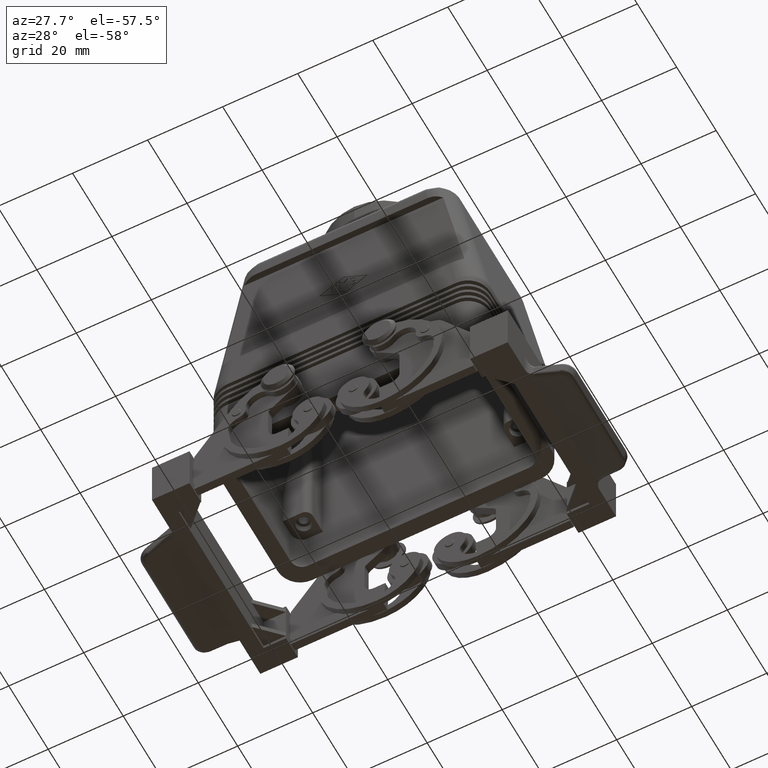
[diagram: clean part render]
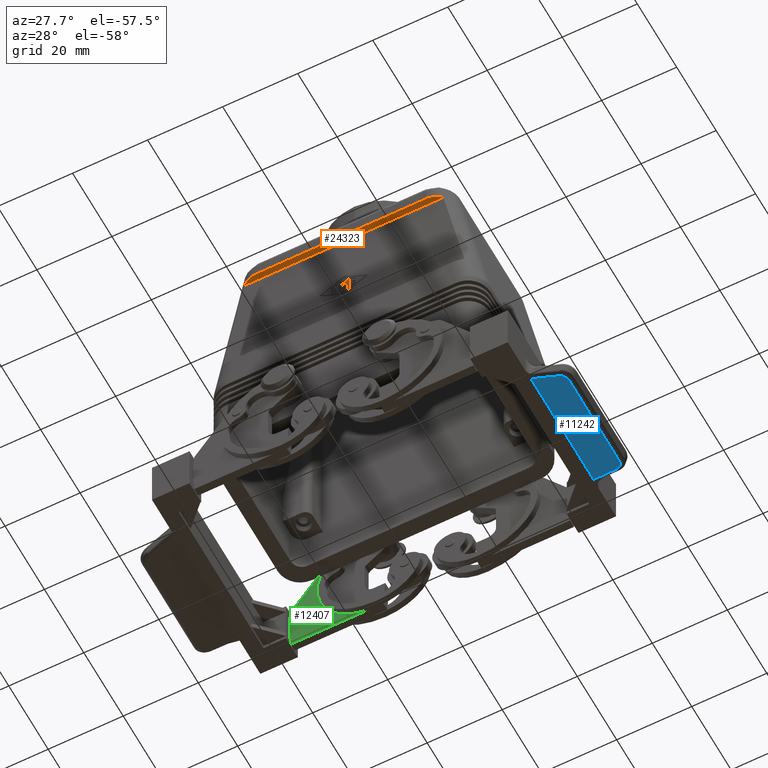
[diagram: same view with three faces highlighted in distinct colors, each labeled with its STEP entity id]
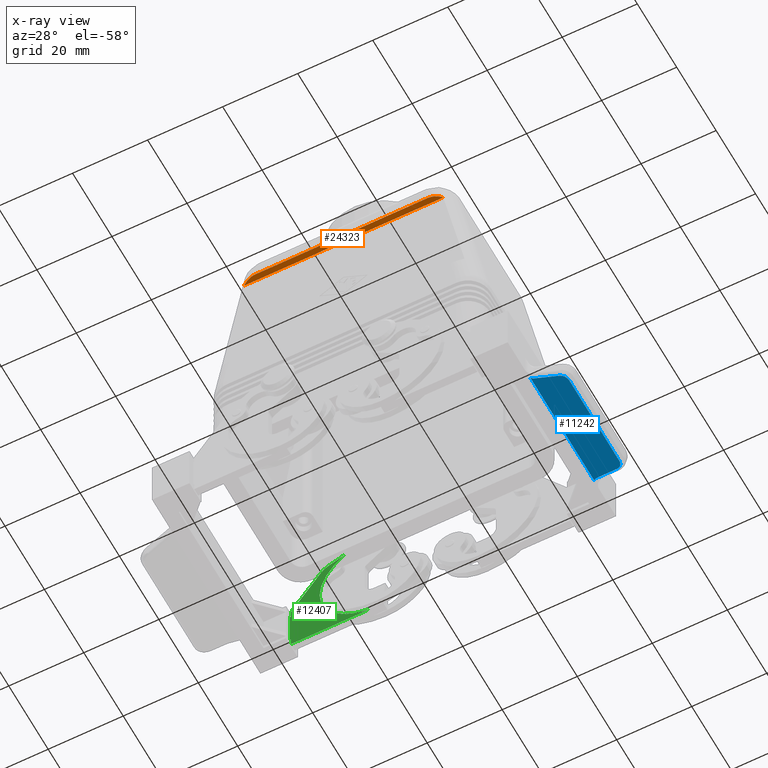
[diagram: x-ray of the same camera — body ghosted, the three highlighted faces saturated]
A machine part, auxiliary view with three faces highlighted in distinct colors.
The next image is the same camera in x-ray (body ghosted, the three faces saturated) — at least one of them is partly hidden behind the body in this view.
Their STEP definitions:

[orange] entity #24323 — the highlighted planar face has unit normal (0, 0.7071, 0.7071).
#1781=CARTESIAN_POINT('',(22.997355071071752,-21.500000000000000,69.0));
#1782=VERTEX_POINT('',#1781);
#1789=CARTESIAN_POINT('',(26.551731548058775,-20.500000000000004,68.0));
#1790=VERTEX_POINT('',#1789);
#1791=CARTESIAN_POINT('',(24.094129264620143,-15.499999999999998,62.999999999999957));
#1792=DIRECTION('',(-1.387779E-017,0.707106781186551,0.707106781186544));
#1793=DIRECTION('',(-0.250284329480718,-0.684601254167847,0.684601254167853));
#1794=AXIS2_PLACEMENT_3D('',#1791,#1792,#1793);
#1795=ELLIPSE('',#1794,8.625881245604305,6.000000000000001);
#1796=EDGE_CURVE('',#1782,#1790,#1795,.T.);
#2032=CARTESIAN_POINT('',(-26.551731548058775,-20.500000000000004,68.0));
#2033=VERTEX_POINT('',#2032);
#2040=CARTESIAN_POINT('',(-22.997355071071752,-21.500000000000000,69.0));
#2041=VERTEX_POINT('',#2040);
#2042=CARTESIAN_POINT('',(-24.094129264620143,-15.499999999999998,62.999999999999957));
#2043=DIRECTION('',(1.387779E-017,0.707106781186551,0.707106781186544));
#2044=DIRECTION('',(0.250284329480718,-0.684601254167847,0.684601254167853));
#2045=AXIS2_PLACEMENT_3D('',#2042,#2043,#2044);
#2046=ELLIPSE('',#2045,8.625881245604305,6.000000000000001);
#2047=EDGE_CURVE('',#2033,#2041,#2046,.T.);
#24273=CARTESIAN_POINT('',(-26.551731548058775,-20.500000000000004,68.0));
#24274=DIRECTION('',(1.0,0.0,0.0));
#24275=VECTOR('',#24274,53.103463096117551);
#24276=LINE('',#24273,#24275);
#24277=EDGE_CURVE('',#2033,#1790,#24276,.T.);
#24307=CARTESIAN_POINT('',(0.0,-21.500000000000000,69.0));
#24308=DIRECTION('',(0.0,0.707106781186551,0.707106781186544));
#24309=DIRECTION('',(1.0,0.0,0.0));
#24310=AXIS2_PLACEMENT_3D('',#24307,#24308,#24309);
#24311=PLANE('',#24310);
#24312=ORIENTED_EDGE('',*,*,#1796,.F.);
#24313=CARTESIAN_POINT('',(-22.997355071071752,-21.500000000000000,69.0));
#24314=DIRECTION('',(1.0,0.0,0.0));
#24315=VECTOR('',#24314,45.994710142143504);
#24316=LINE('',#24313,#24315);
#24317=EDGE_CURVE('',#2041,#1782,#24316,.T.);
#24318=ORIENTED_EDGE('',*,*,#24317,.F.);
#24319=ORIENTED_EDGE('',*,*,#2047,.F.);
#24320=ORIENTED_EDGE('',*,*,#24277,.T.);
#24321=EDGE_LOOP('',(#24312,#24318,#24319,#24320));
#24322=FACE_OUTER_BOUND('',#24321,.T.);
#24323=ADVANCED_FACE('',(#24322),#24311,.F.);

[blue] entity #11242 — the highlighted planar face has unit normal (-0.2843, 0, -0.9587).
#7396=CARTESIAN_POINT('',(56.043983636699089,-12.706588053087298,-23.035676786148805));
#7397=VERTEX_POINT('',#7396);
#7405=CARTESIAN_POINT('',(56.043983636699089,12.706588053087295,-23.035676786148805));
#7406=VERTEX_POINT('',#7405);
#7407=CARTESIAN_POINT('',(56.043983636699089,-12.706588053087298,-23.035676786148805));
#7408=DIRECTION('',(0.0,1.0,0.0));
#7409=VECTOR('',#7408,25.413176106174593);
#7410=LINE('',#7407,#7409);
#7411=EDGE_CURVE('',#7397,#7406,#7410,.T.);
#9941=CARTESIAN_POINT('',(54.448294052914505,-14.680744051950416,-22.562454599318134));
#9942=VERTEX_POINT('',#9941);
#9950=CARTESIAN_POINT('',(54.126526664493113,-12.706588053087298,-22.467030358446408));
#9951=DIRECTION('',(0.284323213851200,6.310887E-030,0.958728486102987));
#9952=DIRECTION('',(-1.734629E-013,-1.0,5.144265E-014));
#9953=AXIS2_PLACEMENT_3D('',#9950,#9951,#9952);
#9954=ELLIPSE('',#9953,2.002553303570501,2.000000000000000);
#9955=EDGE_CURVE('',#9942,#7397,#9954,.T.);
#10021=CARTESIAN_POINT('',(54.448294052914520,14.680744051950414,-22.562454599318137));
#10022=VERTEX_POINT('',#10021);
#10041=CARTESIAN_POINT('',(54.126526664493113,12.706588053087295,-22.467030358446408));
#10042=DIRECTION('',(0.284323213851200,0.0,0.958728486102987));
#10043=DIRECTION('',(-1.178810E-013,1.0,3.495911E-014));
#10044=AXIS2_PLACEMENT_3D('',#10041,#10042,#10043);
#10045=ELLIPSE('',#10044,2.002553303570501,2.000000000000000);
#10046=EDGE_CURVE('',#7406,#10022,#10045,.T.);
#10057=CARTESIAN_POINT('',(48.590576781996333,-15.722116011224760,-20.825273505357991));
#10058=VERTEX_POINT('',#10057);
#10066=CARTESIAN_POINT('',(48.590576781996333,-15.722116011224760,-20.825273505357991));
#10067=DIRECTION('',(0.945099192195921,0.168017634168164,-0.280281272152012));
#10068=VECTOR('',#10067,6.197992040716774);
#10069=LINE('',#10066,#10068);
#10070=EDGE_CURVE('',#10058,#9942,#10069,.T.);
#10083=CARTESIAN_POINT('',(48.590576781996333,15.722116011224756,-20.825273505357991));
#10084=VERTEX_POINT('',#10083);
#10085=CARTESIAN_POINT('',(54.448294052914520,14.680744051950414,-22.562454599318137));
#10086=DIRECTION('',(-0.945099192195921,0.168017634168163,0.280281272152012));
#10087=VECTOR('',#10086,6.197992040716788);
#10088=LINE('',#10085,#10087);
#10089=EDGE_CURVE('',#10022,#10084,#10088,.T.);
#10152=CARTESIAN_POINT('',(47.493765265492904,-16.152035910738395,-20.500000000000014));
#10153=VERTEX_POINT('',#10152);
#10169=CARTESIAN_POINT('',(49.115676786148811,-18.675803534582482,-20.980998638112496));
#10170=DIRECTION('',(-0.284323213851200,-3.081488E-033,-0.958728486102987));
#10171=DIRECTION('',(-0.958728486102987,-8.870020E-017,0.284323213851200));
#10172=AXIS2_PLACEMENT_3D('',#10169,#10170,#10171);
#10173=ELLIPSE('',#10172,3.129144532039846,3.0);
#10174=EDGE_CURVE('',#10153,#10058,#10173,.T.);
#10232=CARTESIAN_POINT('',(47.493765265492904,16.152035910738388,-20.500000000000014));
#10233=VERTEX_POINT('',#10232);
#10251=CARTESIAN_POINT('',(49.115676786148811,18.675803534582474,-20.980998638112496));
#10252=DIRECTION('',(-0.284323213851200,-1.232595E-032,-0.958728486102987));
#10253=DIRECTION('',(-0.958728486102987,-2.661006E-016,0.284323213851200));
#10254=AXIS2_PLACEMENT_3D('',#10251,#10252,#10253);
#10255=ELLIPSE('',#10254,3.129144532039846,3.0);
#10256=EDGE_CURVE('',#10084,#10233,#10255,.T.);
#11222=CARTESIAN_POINT('',(57.002712122802066,0.0,-23.320000000000004));
#11223=DIRECTION('',(-0.284323213851200,0.0,-0.958728486102987));
#11224=DIRECTION('',(-0.958728486102987,0.0,0.284323213851200));
#11225=AXIS2_PLACEMENT_3D('',#11222,#11223,#11224);
#11226=PLANE('',#11225);
#11227=ORIENTED_EDGE('',*,*,#10174,.F.);
#11228=CARTESIAN_POINT('',(47.493765265492904,16.152035910738388,-20.500000000000014));
#11229=DIRECTION('',(0.0,-1.0,0.0));
#11230=VECTOR('',#11229,32.304071821476782);
#11231=LINE('',#11228,#11230);
#11232=EDGE_CURVE('',#10233,#10153,#11231,.T.);
#11233=ORIENTED_EDGE('',*,*,#11232,.F.);
#11234=ORIENTED_EDGE('',*,*,#10256,.F.);
#11235=ORIENTED_EDGE('',*,*,#10089,.F.);
#11236=ORIENTED_EDGE('',*,*,#10046,.F.);
#11237=ORIENTED_EDGE('',*,*,#7411,.F.);
#11238=ORIENTED_EDGE('',*,*,#9955,.F.);
#11239=ORIENTED_EDGE('',*,*,#10070,.F.);
#11240=EDGE_LOOP('',(#11227,#11233,#11234,#11235,#11236,#11237,#11238,#11239));
#11241=FACE_OUTER_BOUND('',#11240,.T.);
#11242=ADVANCED_FACE('',(#11241),#11226,.T.);

[green] entity #12407 — the highlighted planar face has unit normal (0, -1, 0).
#12060=CARTESIAN_POINT('',(-37.400000000000013,23.499999999999996,-18.500000000000018));
#12061=VERTEX_POINT('',#12060);
#12070=CARTESIAN_POINT('',(-37.400000000000013,23.499999999999996,-8.500000000000012));
#12071=VERTEX_POINT('',#12070);
#12072=CARTESIAN_POINT('',(-37.400000000000013,23.499999999999996,-8.500000000000012));
#12073=DIRECTION('',(0.0,0.0,-1.0));
#12074=VECTOR('',#12073,10.000000000000005);
#12075=LINE('',#12072,#12074);
#12076=EDGE_CURVE('',#12071,#12061,#12075,.T.);
#12309=CARTESIAN_POINT('',(-37.200000000000003,23.500000000000000,-8.500000000000012));
#12310=VERTEX_POINT('',#12309);
#12311=CARTESIAN_POINT('',(-37.400000000000013,23.499999999999996,-8.500000000000012));
#12312=DIRECTION('',(1.0,0.0,0.0));
#12313=VECTOR('',#12312,0.200000000000010);
#12314=LINE('',#12311,#12313);
#12315=EDGE_CURVE('',#12071,#12310,#12314,.T.);
#12334=CARTESIAN_POINT('',(-26.486053035139122,23.500000000000000,-7.517596516988990));
#12335=DIRECTION('',(0.0,-1.0,0.0));
#12336=DIRECTION('',(0.0,0.0,1.0));
#12337=AXIS2_PLACEMENT_3D('',#12334,#12335,#12336);
#12338=PLANE('',#12337);
#12339=ORIENTED_EDGE('',*,*,#12076,.T.);
#12340=CARTESIAN_POINT('',(-37.200000000000003,23.500000000000000,-18.500000000000018));
#12341=VERTEX_POINT('',#12340);
#12342=CARTESIAN_POINT('',(-37.200000000000003,23.500000000000000,-18.500000000000018));
#12343=DIRECTION('',(-1.0,0.0,0.0));
#12344=VECTOR('',#12343,0.200000000000010);
#12345=LINE('',#12342,#12344);
#12346=EDGE_CURVE('',#12341,#12061,#12345,.T.);
#12347=ORIENTED_EDGE('',*,*,#12346,.F.);
#12348=CARTESIAN_POINT('',(-37.200000000000003,23.500000000000000,-20.500000000000014));
#12349=VERTEX_POINT('',#12348);
#12350=CARTESIAN_POINT('',(-37.200000000000003,23.500000000000000,-20.500000000000014));
#12351=DIRECTION('',(0.0,0.0,1.0));
#12352=VECTOR('',#12351,1.999999999999996);
#12353=LINE('',#12350,#12352);
#12354=EDGE_CURVE('',#12349,#12341,#12353,.T.);
#12355=ORIENTED_EDGE('',*,*,#12354,.F.);
#12356=CARTESIAN_POINT('',(-16.317356917396147,23.499999999999996,-20.500000000000004));
#12357=VERTEX_POINT('',#12356);
#12358=CARTESIAN_POINT('',(-16.317356917396147,23.499999999999996,-20.500000000000004));
#12359=DIRECTION('',(-1.0,0.0,0.0));
#12360=VECTOR('',#12359,20.882643082603856);
#12361=LINE('',#12358,#12360);
#12362=EDGE_CURVE('',#12357,#12349,#12361,.T.);
#12363=ORIENTED_EDGE('',*,*,#12362,.F.);
#12364=CARTESIAN_POINT('',(-22.915515830944159,23.499999999999996,8.186307882747689));
#12365=VERTEX_POINT('',#12364);
#12366=CARTESIAN_POINT('',(-13.500000000000000,23.499999999999996,-4.750000000000001));
#12367=DIRECTION('',(0.0,-1.0,0.0));
#12368=DIRECTION('',(0.0,0.0,-1.0));
#12369=AXIS2_PLACEMENT_3D('',#12366,#12367,#12368);
#12370=CIRCLE('',#12369,16.0);
#12371=EDGE_CURVE('',#12365,#12357,#12370,.T.);
#12372=ORIENTED_EDGE('',*,*,#12371,.F.);
#12373=CARTESIAN_POINT('',(-26.883676791227167,23.500000000000000,6.671027414224574));
#12374=VERTEX_POINT('',#12373);
#12375=CARTESIAN_POINT('',(-26.883676791227167,23.500000000000000,6.671027414224574));
#12376=DIRECTION('',(0.934205482844915,-8.363987E-016,0.356735358245435));
#12377=VECTOR('',#12376,4.247631846688434);
#12378=LINE('',#12375,#12377);
#12379=EDGE_CURVE('',#12374,#12365,#12378,.T.);
#12380=ORIENTED_EDGE('',*,*,#12379,.F.);
#12381=CARTESIAN_POINT('',(-29.188253679388222,23.500000000000000,4.878572884776176));
#12382=VERTEX_POINT('',#12381);
#12383=CARTESIAN_POINT('',(-25.099999999999998,23.499999999999996,2.000000000000000));
#12384=DIRECTION('',(0.0,1.0,0.0));
#12385=DIRECTION('',(0.356735358245434,0.0,-0.934205482844916));
#12386=AXIS2_PLACEMENT_3D('',#12383,#12384,#12385);
#12387=CIRCLE('',#12386,5.000000000000001);
#12388=EDGE_CURVE('',#12382,#12374,#12387,.T.);
#12389=ORIENTED_EDGE('',*,*,#12388,.F.);
#12390=CARTESIAN_POINT('',(-37.200000000000003,23.500000000000000,-6.500000000000014));
#12391=VERTEX_POINT('',#12390);
#12392=CARTESIAN_POINT('',(-37.200000000000003,23.500000000000000,-6.500000000000014));
#12393=DIRECTION('',(0.575714576955235,0.0,0.817650735877645));
#12394=VECTOR('',#12393,13.916177636118345);
#12395=LINE('',#12392,#12394);
#12396=EDGE_CURVE('',#12391,#12382,#12395,.T.);
#12397=ORIENTED_EDGE('',*,*,#12396,.F.);
#12398=CARTESIAN_POINT('',(-37.200000000000003,23.500000000000000,-8.500000000000012));
#12399=DIRECTION('',(0.0,0.0,1.0));
#12400=VECTOR('',#12399,1.999999999999998);
#12401=LINE('',#12398,#12400);
#12402=EDGE_CURVE('',#12310,#12391,#12401,.T.);
#12403=ORIENTED_EDGE('',*,*,#12402,.F.);
#12404=ORIENTED_EDGE('',*,*,#12315,.F.);
#12405=EDGE_LOOP('',(#12339,#12347,#12355,#12363,#12372,#12380,#12389,#12397,#12403,#12404));
#12406=FACE_OUTER_BOUND('',#12405,.T.);
#12407=ADVANCED_FACE('',(#12406),#12338,.T.);